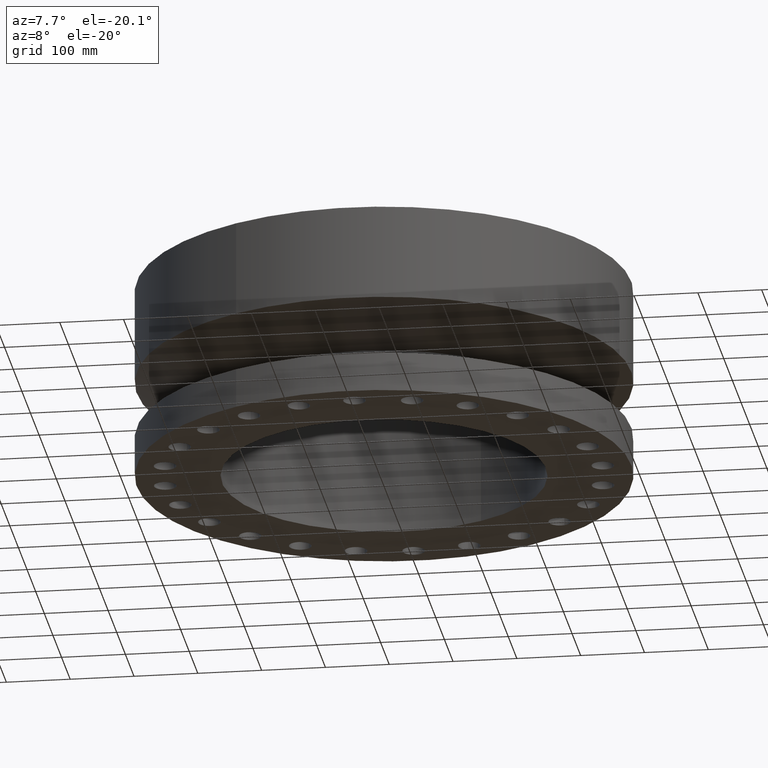
[diagram: clean part render]
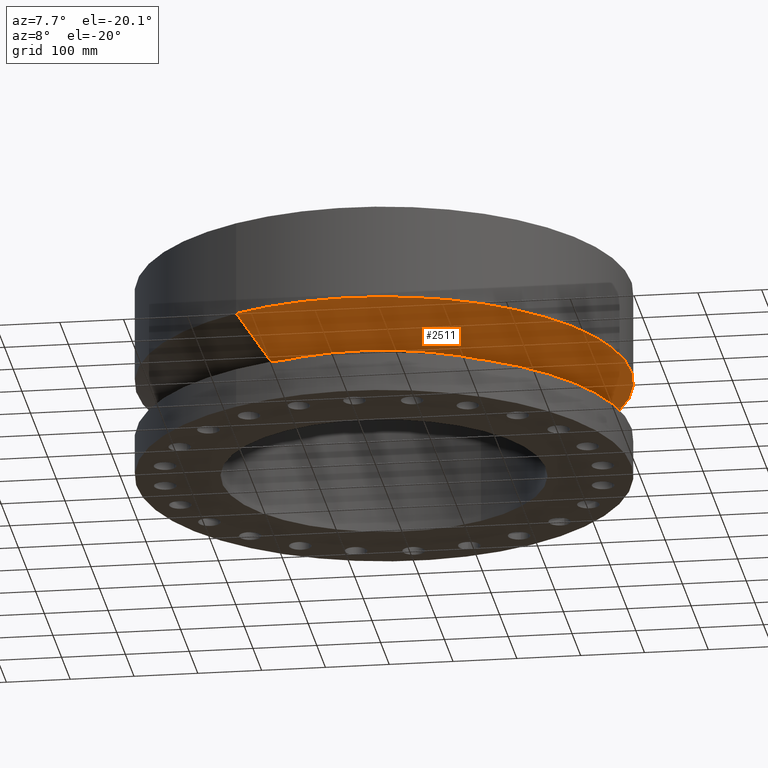
[diagram: same view with one face highlighted and labeled with its STEP entity id]
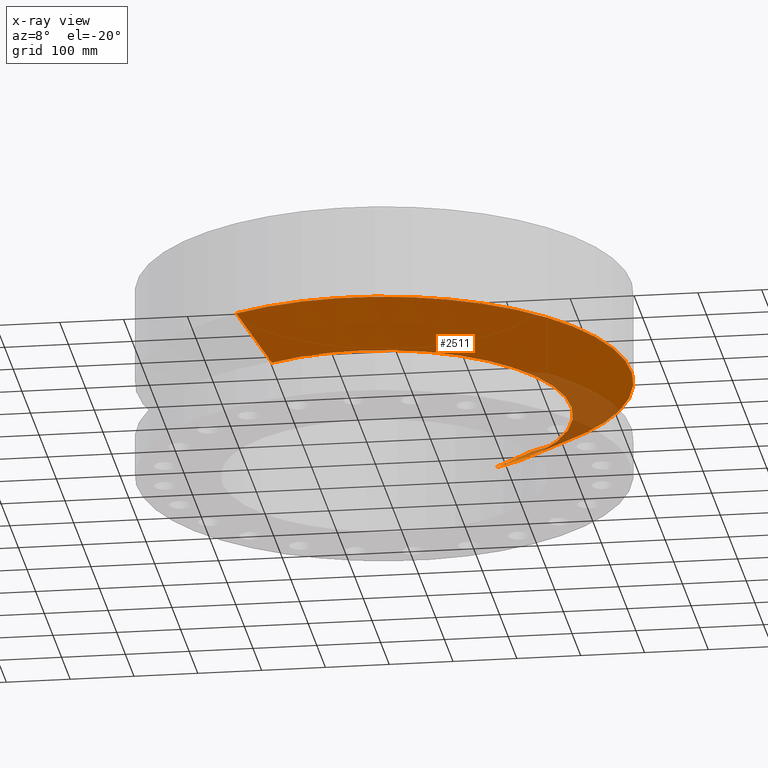
[diagram: x-ray of the same camera — body ghosted, the highlighted face saturated]
A machine part, auxiliary view. The second image highlights one B-rep face of the part: STEP entity #2511.
The next image is the same camera in x-ray: the body ghosted, the highlighted face saturated — about 10% of this face is hidden behind the body in this view.
In plain terms, the highlighted conical surface has half-angle 60 deg.
Its self-contained STEP definition (entity closure, byte-faithful):
#1939=AXIS2_PLACEMENT_3D('Circle Axis2P3D',#1937,#1938,$) ;
#2484=AXIS2_PLACEMENT_3D('Cone Axis2P3D',#2481,#2482,#2483) ;
#2495=AXIS2_PLACEMENT_3D('Circle Axis2P3D',#2493,#2494,$) ;
#1934=CARTESIAN_POINT('Vertex',(5.54215922629,10.1448544155,3.93750000002)) ;
#1937=CARTESIAN_POINT('Axis2P3D Location',(0.,0.,3.93750000002)) ;
#1941=CARTESIAN_POINT('Vertex',(-5.54215922629,-10.1448544155,3.93750000002)) ;
#2481=CARTESIAN_POINT('Axis2P3D Location',(0.,0.,3.93750000002)) ;
#2486=CARTESIAN_POINT('Line Origine',(6.42669934502,11.7639942422,5.00271124667)) ;
#2490=CARTESIAN_POINT('Vertex',(7.31123946374,13.3831340689,6.06792249333)) ;
#2493=CARTESIAN_POINT('Axis2P3D Location',(0.,0.,6.06792249333)) ;
#2497=CARTESIAN_POINT('Vertex',(-7.31123946374,-13.3831340689,6.06792249333)) ;
#2500=CARTESIAN_POINT('Line Origine',(-6.42669934502,-11.7639942422,5.00271124667)) ;
#1938=DIRECTION('Axis2P3D Direction',(0.,0.,-0.0393700787402)) ;
#2482=DIRECTION('Axis2P3D Direction',(-0.,-0.,0.0393700787402)) ;
#2483=DIRECTION('Axis2P3D XDirection',(0.0188750212049,0.0345504945626,0.)) ;
#2487=DIRECTION('Vector Direction',(0.0163462478604,0.0299216060045,0.0196850393701)) ;
#2494=DIRECTION('Axis2P3D Direction',(-0.,0.,0.0393700787402)) ;
#2501=DIRECTION('Vector Direction',(-0.0163462478604,-0.0299216060045,0.0196850393701)) ;
#2488=VECTOR('Line Direction',#2487,0.0393700787402) ;
#2502=VECTOR('Line Direction',#2501,0.0393700787402) ;
#2506=ORIENTED_EDGE('',*,*,#1943,.F.) ;
#2507=ORIENTED_EDGE('',*,*,#2492,.T.) ;
#2508=ORIENTED_EDGE('',*,*,#2499,.T.) ;
#2509=ORIENTED_EDGE('',*,*,#2504,.F.) ;
#2511=ADVANCED_FACE('PartBody',(#2510),#2485,.T.) ;
#1940=CIRCLE('generated circle',#1939,11.56) ;
#2496=CIRCLE('generated circle',#2495,15.2500000001) ;
#2485=CONICAL_SURFACE('Cone',#2484,11.56,1.0471975512) ;
#1943=EDGE_CURVE('',#1935,#1942,#1940,.T.) ;
#2492=EDGE_CURVE('',#1935,#2491,#2489,.T.) ;
#2499=EDGE_CURVE('',#2491,#2498,#2496,.F.) ;
#2504=EDGE_CURVE('',#1942,#2498,#2503,.T.) ;
#2505=EDGE_LOOP('',(#2506,#2507,#2508,#2509)) ;
#2510=FACE_OUTER_BOUND('',#2505,.T.) ;
#2489=LINE('Line',#2486,#2488) ;
#2503=LINE('Line',#2500,#2502) ;
#1935=VERTEX_POINT('',#1934) ;
#1942=VERTEX_POINT('',#1941) ;
#2491=VERTEX_POINT('',#2490) ;
#2498=VERTEX_POINT('',#2497) ;